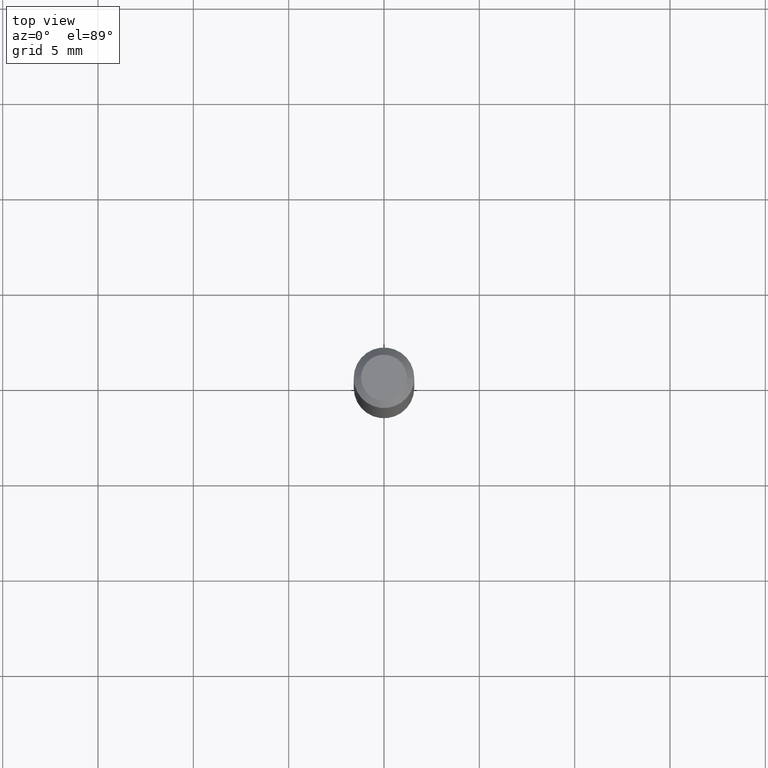
[diagram: clean part render]
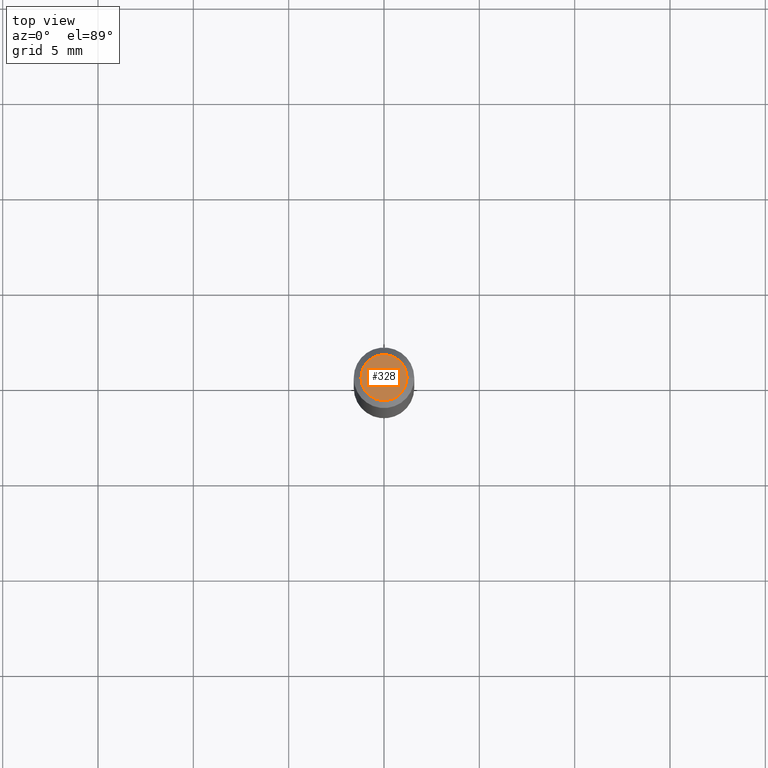
[diagram: same view with one face highlighted and labeled with its STEP entity id]
A machine part, top view. The second image highlights one B-rep face of the part: STEP entity #328.
In plain terms, the highlighted planar face has unit normal (0, -0, -1).
Its self-contained STEP definition (entity closure, byte-faithful):
#1 = DIRECTION ( 'NONE',  ( 1.000000000000000000, -6.982962677686267499E-15, 4.852736867747366768E-29 ) ) ;
#5 = DIRECTION ( 'NONE',  ( 2.438088387897960049E-29, -3.491481338843145188E-15, -1.000000000000000000 ) ) ;
#32 = EDGE_CURVE ( 'NONE', #216, #356, #378, .T. ) ;
#59 = ORIENTED_EDGE ( 'NONE', *, *, #385, .T. ) ;
#168 = FACE_OUTER_BOUND ( 'NONE', #423, .T. ) ;
#199 = DIRECTION ( 'NONE',  ( -2.445468806185136597E-29, 3.491481338843145583E-15, 1.000000000000000000 ) ) ;
#203 = CARTESIAN_POINT ( 'NONE',  ( 7.003305027062207074E-45, -9.998863510493265527E-31, -2.863788329398962481E-16 ) ) ;
#216 = VERTEX_POINT ( 'NONE', #466 ) ;
#239 = PLANE ( 'NONE',  #249 ) ;
#241 = AXIS2_PLACEMENT_3D ( 'NONE', #363, #199, #292 ) ;
#249 = AXIS2_PLACEMENT_3D ( 'NONE', #251, #5, #324 ) ;
#251 = CARTESIAN_POINT ( 'NONE',  ( 3.316907271900976096E-16, 0.04749999999999999362, -3.090347800649974958E-16 ) ) ;
#277 = CARTESIAN_POINT ( 'NONE',  ( 0.04749999999999999362, -4.035134999187584047E-16, -2.863788329398937336E-16 ) ) ;
#292 = DIRECTION ( 'NONE',  ( 1.000000000000000000, -6.982962677686267499E-15, 4.852736867747366768E-29 ) ) ;
#324 = DIRECTION ( 'NONE',  ( -1.000000000000000000, 6.982962677686265922E-15, -4.876176775795935793E-29 ) ) ;
#328 = ADVANCED_FACE ( 'NONE', ( #168 ), #239, .F. ) ;
#356 = VERTEX_POINT ( 'NONE', #277 ) ;
#357 = DIRECTION ( 'NONE',  ( -2.445468806185136597E-29, 3.491481338843145583E-15, 1.000000000000000000 ) ) ;
#359 = CIRCLE ( 'NONE', #405, 0.04749999999999999362 ) ;
#363 = CARTESIAN_POINT ( 'NONE',  ( 7.003305027062207074E-45, -9.998863510493265527E-31, -2.863788329398962481E-16 ) ) ;
#371 = ORIENTED_EDGE ( 'NONE', *, *, #32, .T. ) ;
#378 = CIRCLE ( 'NONE', #241, 0.04749999999999999362 ) ;
#385 = EDGE_CURVE ( 'NONE', #356, #216, #359, .T. ) ;
#405 = AXIS2_PLACEMENT_3D ( 'NONE', #203, #357, #1 ) ;
#423 = EDGE_LOOP ( 'NONE', ( #371, #59 ) ) ;
#466 = CARTESIAN_POINT ( 'NONE',  ( -0.04749999999999999362, 3.578768372314205575E-16, -2.863788329398987133E-16 ) ) ;